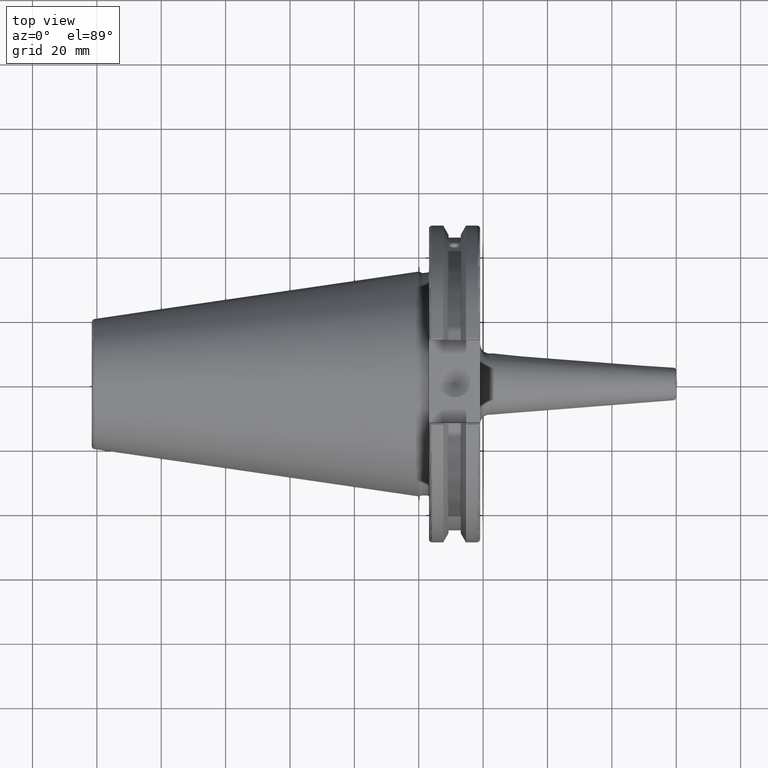
[diagram: clean part render]
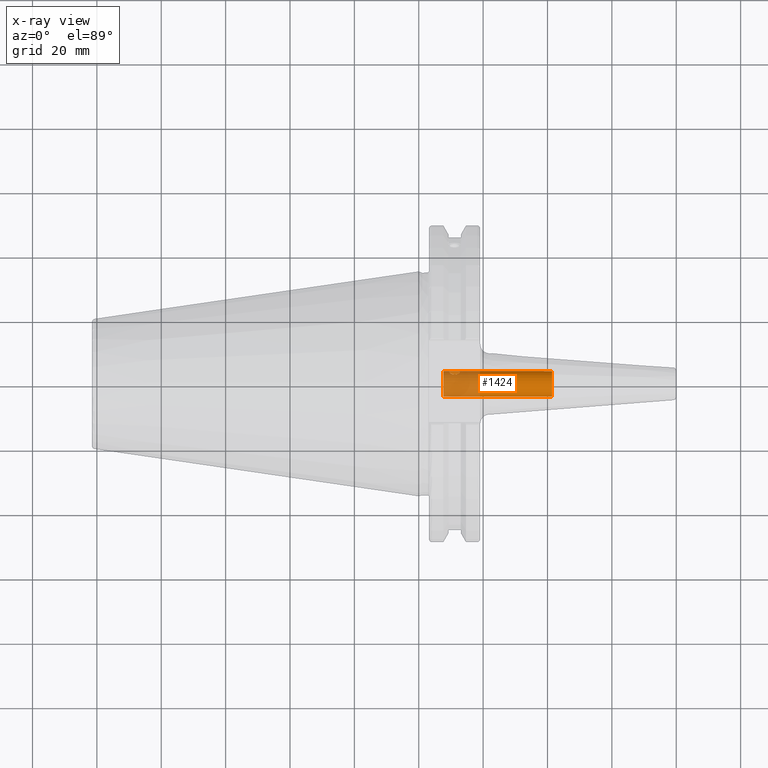
[diagram: x-ray — body ghosted, one internal face saturated and labeled with its STEP entity id]
A machine part, top view, then the same camera in x-ray: the body is ghosted and one INTERNAL B-rep face — a face not visible from any outside direction — is saturated and labeled: STEP entity #1424.
In plain terms, the highlighted cylindrical surface (bore or boss wall) has radius 4 mm, axis along (-1, 0, 0).
Its self-contained STEP definition (entity closure, byte-faithful):
#33=B_SPLINE_CURVE_WITH_KNOTS('',3,(#2157,#2158,#2159,#2160,#2161,#2162,
#2163,#2164,#2165,#2166,#2167,#2168,#2169,#2170,#2171,#2172,#2173,#2174,
#2175,#2176,#2177,#2178,#2179,#2180,#2181,#2182),.UNSPECIFIED.,.F.,.F.,
(4,2,2,2,2,2,2,2,2,2,2,2,4),(0.,0.0618742078368847,0.123748415673769,0.185556382934797,
0.247364350195825,0.309172317456853,0.37098028471788,0.432854492554765,
0.49472870039165,0.556602908228534,0.618477116065419,0.680285083326445,
0.742093050587472),.UNSPECIFIED.);
#34=B_SPLINE_CURVE_WITH_KNOTS('',3,(#2183,#2184,#2185,#2186,#2187,#2188,
#2189,#2190,#2191,#2192),.UNSPECIFIED.,.F.,.F.,(4,2,2,2,4),(0.742093050587472,
0.803901017848499,0.865708985109526,0.92758319294641,0.989457400783295),
 .UNSPECIFIED.);
#35=B_SPLINE_CURVE_WITH_KNOTS('',3,(#2195,#2196,#2197,#2198,#2199,#2200,
#2201,#2202,#2203,#2204,#2205,#2206,#2207,#2208,#2209,#2210,#2211,#2212,
#2213,#2214,#2215,#2216,#2217,#2218,#2219,#2220),.UNSPECIFIED.,.F.,.F.,
(4,2,2,2,2,2,2,2,2,2,2,2,4),(0.,0.0618742078368848,0.12374841567377,0.185556382934797,
0.247364350195824,0.309172317456852,0.370980284717879,0.432854492554763,
0.494728700391648,0.556602908228533,0.618477116065417,0.680285083326444,
0.742093050587471),.UNSPECIFIED.);
#36=B_SPLINE_CURVE_WITH_KNOTS('',3,(#2221,#2222,#2223,#2224,#2225,#2226,
#2227,#2228,#2229,#2230),.UNSPECIFIED.,.F.,.F.,(4,2,2,2,4),(0.742093050587471,
0.803901017848498,0.865708985109526,0.92758319294641,0.989457400783295),
 .UNSPECIFIED.);
#74=CYLINDRICAL_SURFACE('',#1547,4.);
#99=FACE_BOUND('',#444,.T.);
#100=FACE_BOUND('',#445,.T.);
#166=LINE('',#2154,#258);
#258=VECTOR('',#1752,4.);
#358=FACE_OUTER_BOUND('',#443,.T.);
#443=EDGE_LOOP('',(#1021,#1022,#1023,#1024));
#444=EDGE_LOOP('',(#1025,#1026));
#445=EDGE_LOOP('',(#1027,#1028));
#548=CIRCLE('',#1546,4.);
#549=CIRCLE('',#1548,4.);
#627=VERTEX_POINT('',#2148);
#628=VERTEX_POINT('',#2152);
#629=VERTEX_POINT('',#2155);
#630=VERTEX_POINT('',#2156);
#631=VERTEX_POINT('',#2193);
#632=VERTEX_POINT('',#2194);
#780=EDGE_CURVE('',#627,#627,#548,.T.);
#782=EDGE_CURVE('',#628,#628,#549,.T.);
#783=EDGE_CURVE('',#628,#627,#166,.T.);
#784=EDGE_CURVE('',#629,#630,#33,.T.);
#785=EDGE_CURVE('',#630,#629,#34,.T.);
#786=EDGE_CURVE('',#631,#632,#35,.T.);
#787=EDGE_CURVE('',#632,#631,#36,.T.);
#1021=ORIENTED_EDGE('',*,*,#782,.F.);
#1022=ORIENTED_EDGE('',*,*,#783,.T.);
#1023=ORIENTED_EDGE('',*,*,#780,.F.);
#1024=ORIENTED_EDGE('',*,*,#783,.F.);
#1025=ORIENTED_EDGE('',*,*,#784,.F.);
#1026=ORIENTED_EDGE('',*,*,#785,.F.);
#1027=ORIENTED_EDGE('',*,*,#786,.F.);
#1028=ORIENTED_EDGE('',*,*,#787,.F.);
#1424=ADVANCED_FACE('',(#358,#99,#100),#74,.F.);
#1546=AXIS2_PLACEMENT_3D('',#2149,#1745,#1746);
#1547=AXIS2_PLACEMENT_3D('',#2151,#1748,#1749);
#1548=AXIS2_PLACEMENT_3D('',#2153,#1750,#1751);
#1745=DIRECTION('center_axis',(-1.,0.,0.));
#1746=DIRECTION('ref_axis',(0.,0.,1.));
#1748=DIRECTION('center_axis',(-1.,0.,0.));
#1749=DIRECTION('ref_axis',(0.,0.,1.));
#1750=DIRECTION('center_axis',(1.,0.,0.));
#1751=DIRECTION('ref_axis',(0.,0.,1.));
#1752=DIRECTION('',(1.,0.,0.));
#2148=CARTESIAN_POINT('',(41.4,-4.89858719658941E-16,-4.));
#2149=CARTESIAN_POINT('Origin',(41.4,0.,0.));
#2151=CARTESIAN_POINT('Origin',(-30.1,0.,0.));
#2152=CARTESIAN_POINT('',(7.59731185421702,4.89858719658941E-16,-4.));
#2153=CARTESIAN_POINT('Origin',(7.59731185421702,0.,0.));
#2154=CARTESIAN_POINT('',(-30.1,-4.89858719658941E-16,-4.));
#2155=CARTESIAN_POINT('',(11.1341,-3.99070482512933,0.272534399093866));
#2156=CARTESIAN_POINT('',(9.5131,-3.75877048314363,-1.36808057330268));
#2157=CARTESIAN_POINT('Ctrl Pts',(11.1341,-3.99070482512933,0.272534399093866));
#2158=CARTESIAN_POINT('Ctrl Pts',(11.3403473594563,-3.99070482512933,0.272534399093867));
#2159=CARTESIAN_POINT('Ctrl Pts',(11.5584520062584,-3.99457216119088,0.226743676053508));
#2160=CARTESIAN_POINT('Ctrl Pts',(11.9569734476557,-4.00071729112292,0.0477496275625771));
#2161=CARTESIAN_POINT('Ctrl Pts',(12.1376373648484,-4.00187016626142,-0.0849398902486481));
#2162=CARTESIAN_POINT('Ctrl Pts',(12.4228500681296,-3.98448362830594,-0.382128727215539));
#2163=CARTESIAN_POINT('Ctrl Pts',(12.5472588058457,-3.96471483330365,-0.567253235362102));
#2164=CARTESIAN_POINT('Ctrl Pts',(12.7134451981473,-3.88747363651699,-0.963477385751771));
#2165=CARTESIAN_POINT('Ctrl Pts',(12.7551,-3.82923571588125,-1.17447893749946));
#2166=CARTESIAN_POINT('Ctrl Pts',(12.7551,-3.68830525040602,-1.56168220910589));
#2167=CARTESIAN_POINT('Ctrl Pts',(12.7134451981473,-3.59728890279978,-1.76075338911026));
#2168=CARTESIAN_POINT('Ctrl Pts',(12.5472588058457,-3.40177111784901,-2.11392838199763));
#2169=CARTESIAN_POINT('Ctrl Pts',(12.4228500681296,-3.29791915332174,-2.26844911923434));
#2170=CARTESIAN_POINT('Ctrl Pts',(12.1376373648484,-3.12020871196815,-2.50728482752294));
#2171=CARTESIAN_POINT('Ctrl Pts',(11.9569734476557,-3.03403438039035,-2.60818984144782));
#2172=CARTESIAN_POINT('Ctrl Pts',(11.5584520062584,-2.91427178117607,-2.74135722426544));
#2173=CARTESIAN_POINT('Ctrl Pts',(11.3403473594563,-2.88187552046751,-2.77394907749405));
#2174=CARTESIAN_POINT('Ctrl Pts',(10.9278526405437,-2.88187552046751,-2.77394907749405));
#2175=CARTESIAN_POINT('Ctrl Pts',(10.7097479937415,-2.91427178117607,-2.74135722426544));
#2176=CARTESIAN_POINT('Ctrl Pts',(10.3112265523443,-3.03403438039036,-2.60818984144781));
#2177=CARTESIAN_POINT('Ctrl Pts',(10.1305626351516,-3.12020871196815,-2.50728482752293));
#2178=CARTESIAN_POINT('Ctrl Pts',(9.84534993187043,-3.29791915332175,-2.26844911923433));
#2179=CARTESIAN_POINT('Ctrl Pts',(9.72094119415433,-3.40177111784901,-2.11392838199762));
#2180=CARTESIAN_POINT('Ctrl Pts',(9.55475480185271,-3.59728890279979,-1.76075338911025));
#2181=CARTESIAN_POINT('Ctrl Pts',(9.5131,-3.68830525040602,-1.56168220910589));
#2182=CARTESIAN_POINT('Ctrl Pts',(9.5131,-3.75877048314363,-1.36808057330268));
#2183=CARTESIAN_POINT('Ctrl Pts',(9.5131,-3.75877048314363,-1.36808057330268));
#2184=CARTESIAN_POINT('Ctrl Pts',(9.5131,-3.82923571588125,-1.17447893749946));
#2185=CARTESIAN_POINT('Ctrl Pts',(9.55475480185271,-3.88747363651699,-0.963477385751775));
#2186=CARTESIAN_POINT('Ctrl Pts',(9.72094119415433,-3.96471483330365,-0.56725323536211));
#2187=CARTESIAN_POINT('Ctrl Pts',(9.84534993187043,-3.98448362830594,-0.382128727215548));
#2188=CARTESIAN_POINT('Ctrl Pts',(10.1305626351516,-4.00187016626142,-0.084939890248657));
#2189=CARTESIAN_POINT('Ctrl Pts',(10.3112265523443,-4.00071729112292,0.047749627562567));
#2190=CARTESIAN_POINT('Ctrl Pts',(10.7097479937415,-3.99457216119088,0.226743676053503));
#2191=CARTESIAN_POINT('Ctrl Pts',(10.9278526405437,-3.99070482512933,0.272534399093864));
#2192=CARTESIAN_POINT('Ctrl Pts',(11.1341,-3.99070482512933,0.272534399093866));
#2193=CARTESIAN_POINT('',(11.1341,3.99070482512933,-0.272534399093865));
#2194=CARTESIAN_POINT('',(9.5131,3.75877048314363,1.36808057330268));
#2195=CARTESIAN_POINT('Ctrl Pts',(11.1341,3.99070482512933,-0.272534399093865));
#2196=CARTESIAN_POINT('Ctrl Pts',(11.3403473594563,3.99070482512933,-0.272534399093865));
#2197=CARTESIAN_POINT('Ctrl Pts',(11.5584520062584,3.99457216119088,-0.226743676053506));
#2198=CARTESIAN_POINT('Ctrl Pts',(11.9569734476557,4.00071729112292,-0.0477496275625716));
#2199=CARTESIAN_POINT('Ctrl Pts',(12.1376373648484,4.00187016626142,0.0849398902486519));
#2200=CARTESIAN_POINT('Ctrl Pts',(12.4228500681296,3.98448362830594,0.382128727215544));
#2201=CARTESIAN_POINT('Ctrl Pts',(12.5472588058457,3.96471483330365,0.567253235362108));
#2202=CARTESIAN_POINT('Ctrl Pts',(12.7134451981473,3.88747363651699,0.963477385751774));
#2203=CARTESIAN_POINT('Ctrl Pts',(12.7551,3.82923571588125,1.17447893749946));
#2204=CARTESIAN_POINT('Ctrl Pts',(12.7551,3.68830525040602,1.56168220910589));
#2205=CARTESIAN_POINT('Ctrl Pts',(12.7134451981473,3.59728890279979,1.76075338911025));
#2206=CARTESIAN_POINT('Ctrl Pts',(12.5472588058457,3.40177111784901,2.11392838199762));
#2207=CARTESIAN_POINT('Ctrl Pts',(12.4228500681296,3.29791915332174,2.26844911923433));
#2208=CARTESIAN_POINT('Ctrl Pts',(12.1376373648484,3.12020871196815,2.50728482752294));
#2209=CARTESIAN_POINT('Ctrl Pts',(11.9569734476557,3.03403438039035,2.60818984144782));
#2210=CARTESIAN_POINT('Ctrl Pts',(11.5584520062584,2.91427178117607,2.74135722426544));
#2211=CARTESIAN_POINT('Ctrl Pts',(11.3403473594563,2.88187552046751,2.77394907749405));
#2212=CARTESIAN_POINT('Ctrl Pts',(10.9278526405437,2.88187552046751,2.77394907749405));
#2213=CARTESIAN_POINT('Ctrl Pts',(10.7097479937416,2.91427178117607,2.74135722426544));
#2214=CARTESIAN_POINT('Ctrl Pts',(10.3112265523443,3.03403438039035,2.60818984144781));
#2215=CARTESIAN_POINT('Ctrl Pts',(10.1305626351516,3.12020871196815,2.50728482752294));
#2216=CARTESIAN_POINT('Ctrl Pts',(9.84534993187043,3.29791915332174,2.26844911923433));
#2217=CARTESIAN_POINT('Ctrl Pts',(9.72094119415433,3.40177111784901,2.11392838199762));
#2218=CARTESIAN_POINT('Ctrl Pts',(9.55475480185271,3.59728890279979,1.76075338911025));
#2219=CARTESIAN_POINT('Ctrl Pts',(9.5131,3.68830525040602,1.56168220910589));
#2220=CARTESIAN_POINT('Ctrl Pts',(9.5131,3.75877048314363,1.36808057330268));
#2221=CARTESIAN_POINT('Ctrl Pts',(9.5131,3.75877048314363,1.36808057330268));
#2222=CARTESIAN_POINT('Ctrl Pts',(9.5131,3.82923571588125,1.17447893749946));
#2223=CARTESIAN_POINT('Ctrl Pts',(9.55475480185271,3.88747363651699,0.963477385751774));
#2224=CARTESIAN_POINT('Ctrl Pts',(9.72094119415433,3.96471483330365,0.567253235362108));
#2225=CARTESIAN_POINT('Ctrl Pts',(9.84534993187043,3.98448362830594,0.382128727215546));
#2226=CARTESIAN_POINT('Ctrl Pts',(10.1305626351516,4.00187016626142,0.0849398902486532));
#2227=CARTESIAN_POINT('Ctrl Pts',(10.3112265523443,4.00071729112292,-0.0477496275625689));
#2228=CARTESIAN_POINT('Ctrl Pts',(10.7097479937416,3.99457216119088,-0.226743676053504));
#2229=CARTESIAN_POINT('Ctrl Pts',(10.9278526405437,3.99070482512933,-0.272534399093865));
#2230=CARTESIAN_POINT('Ctrl Pts',(11.1341,3.99070482512933,-0.272534399093866));